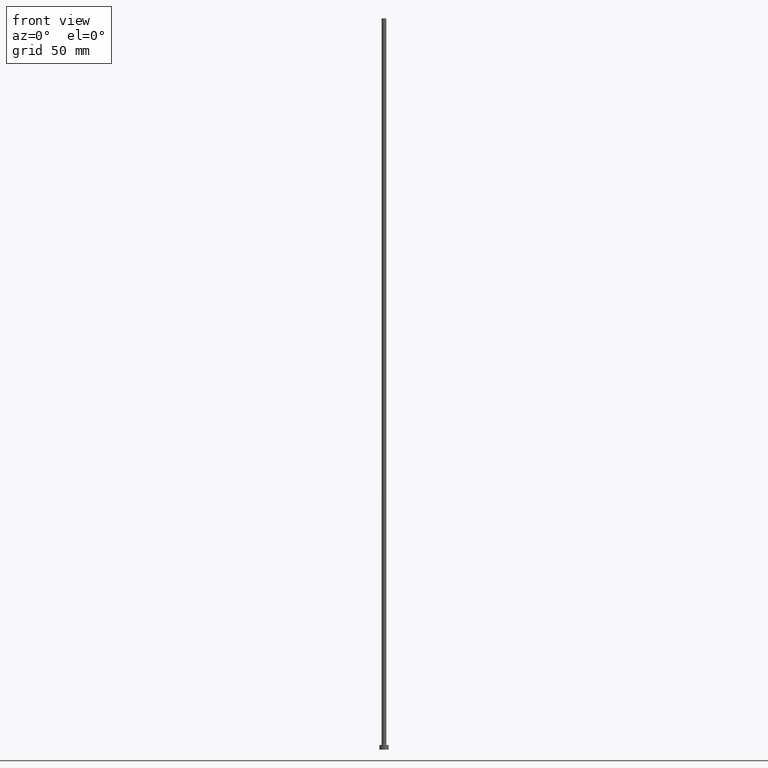
[diagram: clean part render]
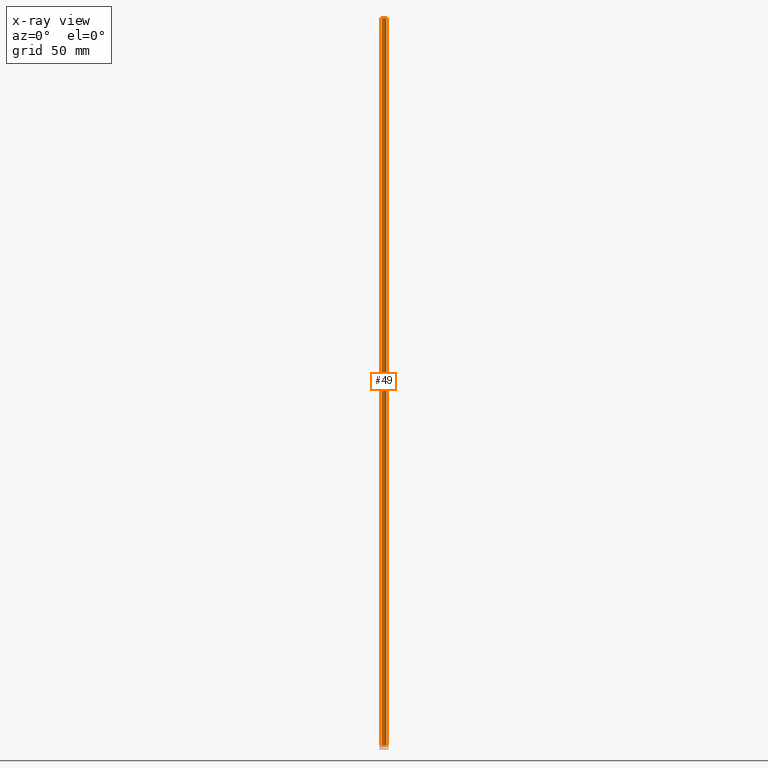
[diagram: x-ray — body ghosted, one internal face saturated and labeled with its STEP entity id]
A machine part, front view, then the same camera in x-ray: the body is ghosted and one INTERNAL B-rep face — a face not visible from any outside direction — is saturated and labeled: STEP entity #49.
In plain terms, the highlighted cylindrical surface (edge-blend (fillet) strip) has radius 1 mm, axis along (-0, -0, -1).
Its self-contained STEP definition (entity closure, byte-faithful):
#5 = CARTESIAN_POINT ( 'NONE',  ( -1.000000000000000000, 0.000000000000000000, 2.000000000000000000 ) ) ;
#7 = CARTESIAN_POINT ( 'NONE',  ( 0.000000000000000000, 0.000000000000000000, 315.0000000000000000 ) ) ;
#22 = VERTEX_POINT ( 'NONE', #5 ) ;
#24 = VECTOR ( 'NONE', #64, 1000.000000000000000 ) ;
#25 = CIRCLE ( 'NONE', #169, 1.000000000000000000 ) ;
#28 = CARTESIAN_POINT ( 'NONE',  ( -1.000000000000000000, 0.000000000000000000, 315.0000000000000000 ) ) ;
#30 = EDGE_CURVE ( 'NONE', #218, #232, #31, .T. ) ;
#31 = CIRCLE ( 'NONE', #91, 1.000000000000000000 ) ;
#42 = FACE_OUTER_BOUND ( 'NONE', #150, .T. ) ;
#43 = ORIENTED_EDGE ( 'NONE', *, *, #158, .T. ) ;
#49 = ADVANCED_FACE ( 'NONE', ( #42 ), #71, .T. ) ;
#53 = ORIENTED_EDGE ( 'NONE', *, *, #215, .T. ) ;
#64 = DIRECTION ( 'NONE',  ( -0.000000000000000000, -0.000000000000000000, -1.000000000000000000 ) ) ;
#70 = CARTESIAN_POINT ( 'NONE',  ( 0.000000000000000000, 0.000000000000000000, 2.000000000000000000 ) ) ;
#71 = CYLINDRICAL_SURFACE ( 'NONE', #164, 1.000000000000000000 ) ;
#91 = AXIS2_PLACEMENT_3D ( 'NONE', #203, #104, #242 ) ;
#95 = ORIENTED_EDGE ( 'NONE', *, *, #116, .F. ) ;
#99 = VECTOR ( 'NONE', #187, 1000.000000000000000 ) ;
#101 = VERTEX_POINT ( 'NONE', #170 ) ;
#104 = DIRECTION ( 'NONE',  ( 0.000000000000000000, 0.000000000000000000, 1.000000000000000000 ) ) ;
#116 = EDGE_CURVE ( 'NONE', #232, #22, #247, .T. ) ;
#118 = LINE ( 'NONE', #134, #24 ) ;
#120 = DIRECTION ( 'NONE',  ( -1.000000000000000000, 0.000000000000000000, 0.000000000000000000 ) ) ;
#134 = CARTESIAN_POINT ( 'NONE',  ( 1.000000000000000000, 1.224646799147353207E-16, 315.0000000000000000 ) ) ;
#150 = EDGE_LOOP ( 'NONE', ( #191, #53, #43, #95 ) ) ;
#153 = DIRECTION ( 'NONE',  ( 1.000000000000000000, 0.000000000000000000, 0.000000000000000000 ) ) ;
#158 = EDGE_CURVE ( 'NONE', #101, #22, #25, .T. ) ;
#163 = DIRECTION ( 'NONE',  ( -0.000000000000000000, -0.000000000000000000, -1.000000000000000000 ) ) ;
#164 = AXIS2_PLACEMENT_3D ( 'NONE', #7, #163, #120 ) ;
#169 = AXIS2_PLACEMENT_3D ( 'NONE', #70, #196, #153 ) ;
#170 = CARTESIAN_POINT ( 'NONE',  ( 1.000000000000000000, 1.224646799147353207E-16, 2.000000000000000000 ) ) ;
#187 = DIRECTION ( 'NONE',  ( -0.000000000000000000, -0.000000000000000000, -1.000000000000000000 ) ) ;
#191 = ORIENTED_EDGE ( 'NONE', *, *, #30, .F. ) ;
#196 = DIRECTION ( 'NONE',  ( 0.000000000000000000, 0.000000000000000000, 1.000000000000000000 ) ) ;
#203 = CARTESIAN_POINT ( 'NONE',  ( 0.000000000000000000, 0.000000000000000000, 315.0000000000000000 ) ) ;
#215 = EDGE_CURVE ( 'NONE', #218, #101, #118, .T. ) ;
#218 = VERTEX_POINT ( 'NONE', #236 ) ;
#221 = CARTESIAN_POINT ( 'NONE',  ( -1.000000000000000000, 0.000000000000000000, 315.0000000000000000 ) ) ;
#232 = VERTEX_POINT ( 'NONE', #221 ) ;
#236 = CARTESIAN_POINT ( 'NONE',  ( 1.000000000000000000, 1.224646799147353207E-16, 315.0000000000000000 ) ) ;
#242 = DIRECTION ( 'NONE',  ( 1.000000000000000000, 0.000000000000000000, 0.000000000000000000 ) ) ;
#247 = LINE ( 'NONE', #28, #99 ) ;